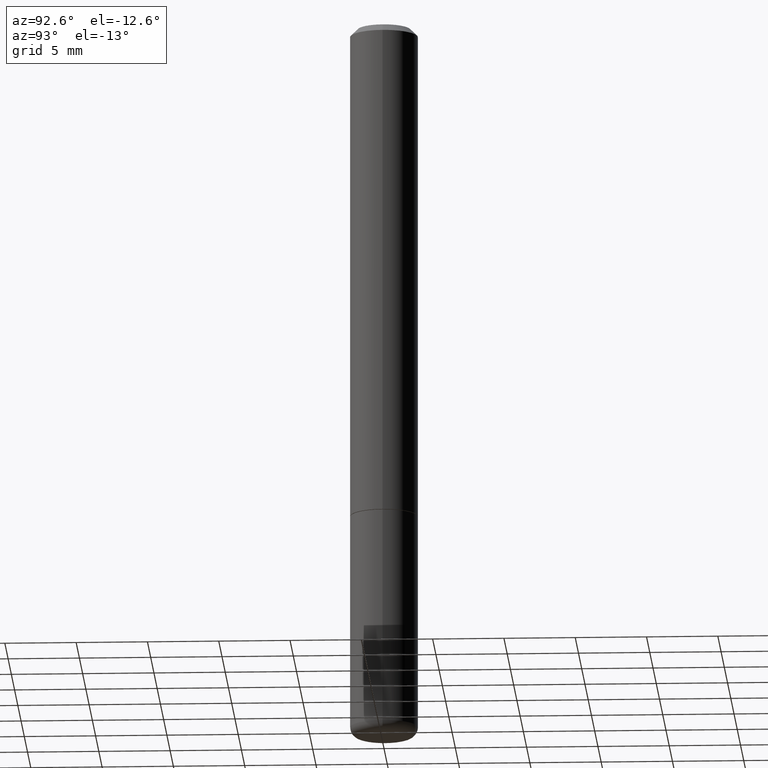
[diagram: clean part render]
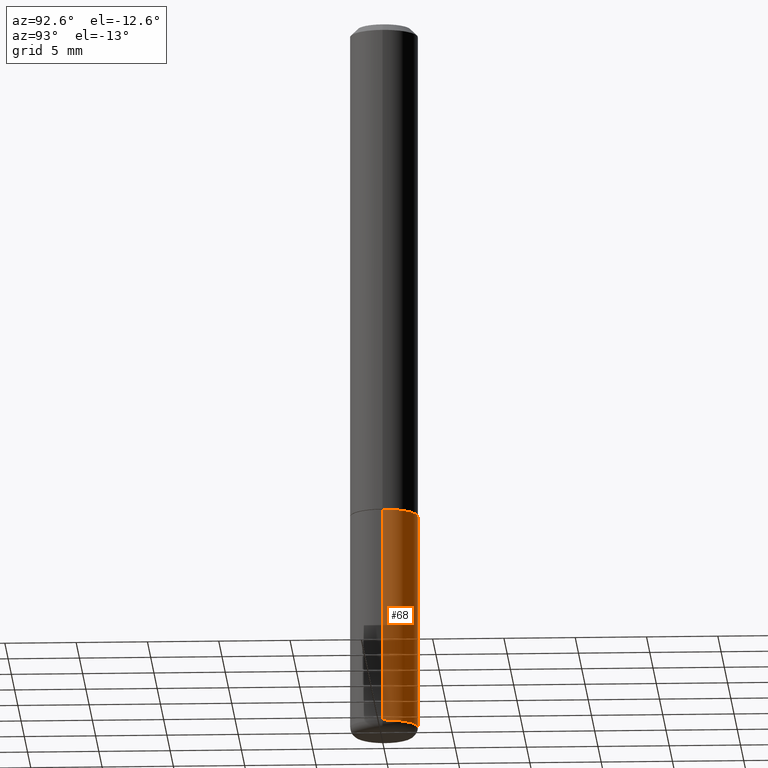
[diagram: same view with one face highlighted and labeled with its STEP entity id]
A machine part, auxiliary view. The second image highlights one B-rep face of the part: STEP entity #68.
In plain terms, the highlighted cylindrical surface (edge-blend (fillet) strip) has radius 2.3812 mm, axis along (-0, 0, 1).
Its self-contained STEP definition (entity closure, byte-faithful):
#3 = VERTEX_POINT ( 'NONE', #378 ) ;
#5 = CARTESIAN_POINT ( 'NONE',  ( 3.362519608504562260E-29, -4.800786840909324930E-15, -1.375000000000000000 ) ) ;
#9 = CIRCLE ( 'NONE', #429, 0.09375000000000001388 ) ;
#41 = CIRCLE ( 'NONE', #108, 0.09374999999999998612 ) ;
#49 = CARTESIAN_POINT ( 'NONE',  ( 4.817674091084948534E-29, -6.878361786135894707E-15, -1.970041113957362811 ) ) ;
#50 = VECTOR ( 'NONE', #132, 39.37007874015748143 ) ;
#55 = EDGE_CURVE ( 'NONE', #3, #412, #41, .T. ) ;
#63 = ORIENTED_EDGE ( 'NONE', *, *, #144, .F. ) ;
#68 = ADVANCED_FACE ( 'NONE', ( #218 ), #193, .T. ) ;
#72 = DIRECTION ( 'NONE',  ( -2.445468806185136597E-29, 3.491481338843145583E-15, 1.000000000000000000 ) ) ;
#81 = DIRECTION ( 'NONE',  ( 1.000000000000000000, -6.982962677686263555E-15, 0.000000000000000000 ) ) ;
#108 = AXIS2_PLACEMENT_3D ( 'NONE', #49, #254, #81 ) ;
#113 = LINE ( 'NONE', #309, #350 ) ;
#132 = DIRECTION ( 'NONE',  ( -2.445468806185136877E-29, 3.491481338843145188E-15, 1.000000000000000000 ) ) ;
#144 = EDGE_CURVE ( 'NONE', #3, #357, #162, .T. ) ;
#162 = LINE ( 'NONE', #331, #50 ) ;
#163 = AXIS2_PLACEMENT_3D ( 'NONE', #354, #427, #323 ) ;
#165 = ORIENTED_EDGE ( 'NONE', *, *, #432, .T. ) ;
#182 = DIRECTION ( 'NONE',  ( 1.000000000000000000, -6.982962677686261189E-15, 0.000000000000000000 ) ) ;
#193 = CYLINDRICAL_SURFACE ( 'NONE', #163, 0.09374999999999998612 ) ;
#211 = CARTESIAN_POINT ( 'NONE',  ( 0.09375000000000001388, -5.455439591942412434E-15, -1.375000000000000000 ) ) ;
#218 = FACE_OUTER_BOUND ( 'NONE', #339, .T. ) ;
#220 = CARTESIAN_POINT ( 'NONE',  ( -0.09375000000000001388, -5.173440498747515894E-15, -1.375000000000000000 ) ) ;
#254 = DIRECTION ( 'NONE',  ( -2.445468806185136597E-29, 3.491481338843145583E-15, 1.000000000000000000 ) ) ;
#307 = VERTEX_POINT ( 'NONE', #220 ) ;
#309 = CARTESIAN_POINT ( 'NONE',  ( -0.09374999999999998612, 6.661338147750938256E-16, -4.611501647113973295E-30 ) ) ;
#323 = DIRECTION ( 'NONE',  ( 1.000000000000000000, -6.982962677686266711E-15, 4.876176775795935793E-29 ) ) ;
#331 = CARTESIAN_POINT ( 'NONE',  ( 0.09374999999999998612, -6.546527510330874055E-16, 4.571415727308689105E-30 ) ) ;
#339 = EDGE_LOOP ( 'NONE', ( #437, #165, #374, #63 ) ) ;
#346 = DIRECTION ( 'NONE',  ( -2.445468806185136877E-29, 3.491481338843145188E-15, 1.000000000000000000 ) ) ;
#350 = VECTOR ( 'NONE', #346, 39.37007874015748143 ) ;
#354 = CARTESIAN_POINT ( 'NONE',  ( 0.000000000000000000, 0.000000000000000000, 0.000000000000000000 ) ) ;
#357 = VERTEX_POINT ( 'NONE', #211 ) ;
#374 = ORIENTED_EDGE ( 'NONE', *, *, #439, .F. ) ;
#378 = CARTESIAN_POINT ( 'NONE',  ( 0.09374999999999998612, -7.533014537168982211E-15, -1.970041113957362811 ) ) ;
#412 = VERTEX_POINT ( 'NONE', #441 ) ;
#427 = DIRECTION ( 'NONE',  ( -2.445468806185136597E-29, 3.491481338843145583E-15, 1.000000000000000000 ) ) ;
#429 = AXIS2_PLACEMENT_3D ( 'NONE', #5, #72, #182 ) ;
#432 = EDGE_CURVE ( 'NONE', #412, #307, #113, .T. ) ;
#437 = ORIENTED_EDGE ( 'NONE', *, *, #55, .T. ) ;
#439 = EDGE_CURVE ( 'NONE', #357, #307, #9, .T. ) ;
#441 = CARTESIAN_POINT ( 'NONE',  ( -0.09374999999999998612, -5.173440498747515894E-15, -1.970041113957362811 ) ) ;